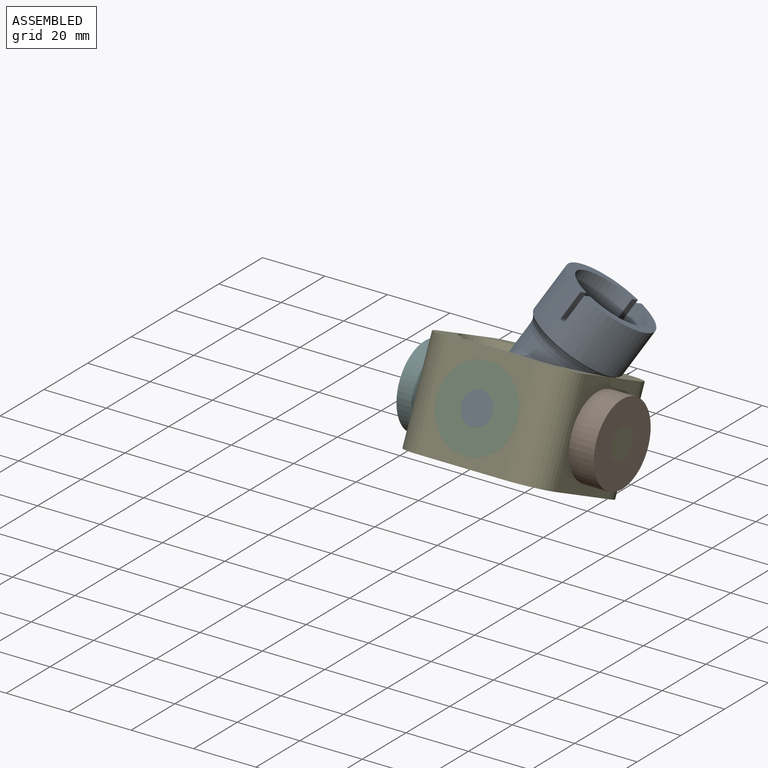
[diagram: assembled view]
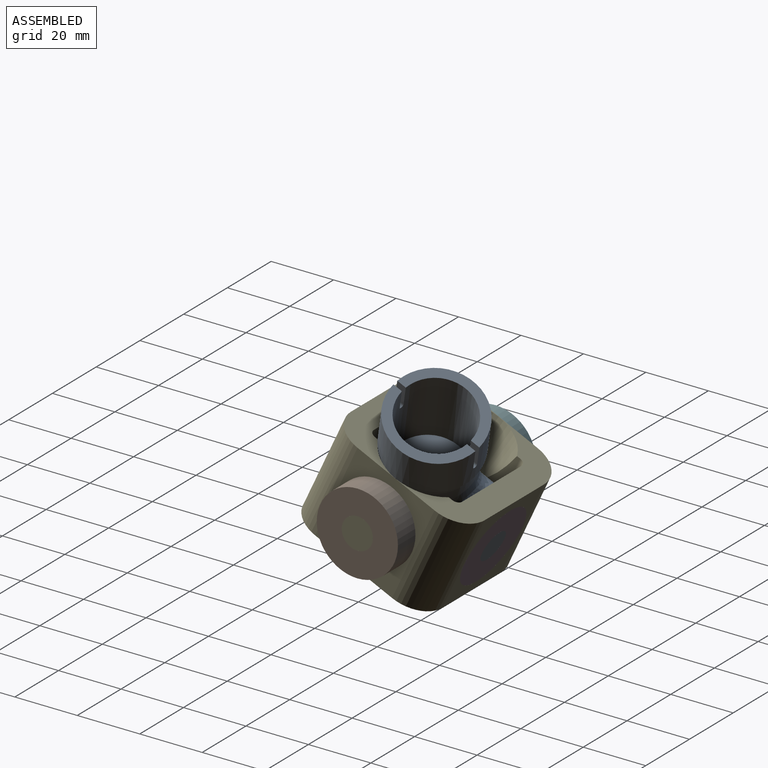
[diagram: assembled view, second angle]
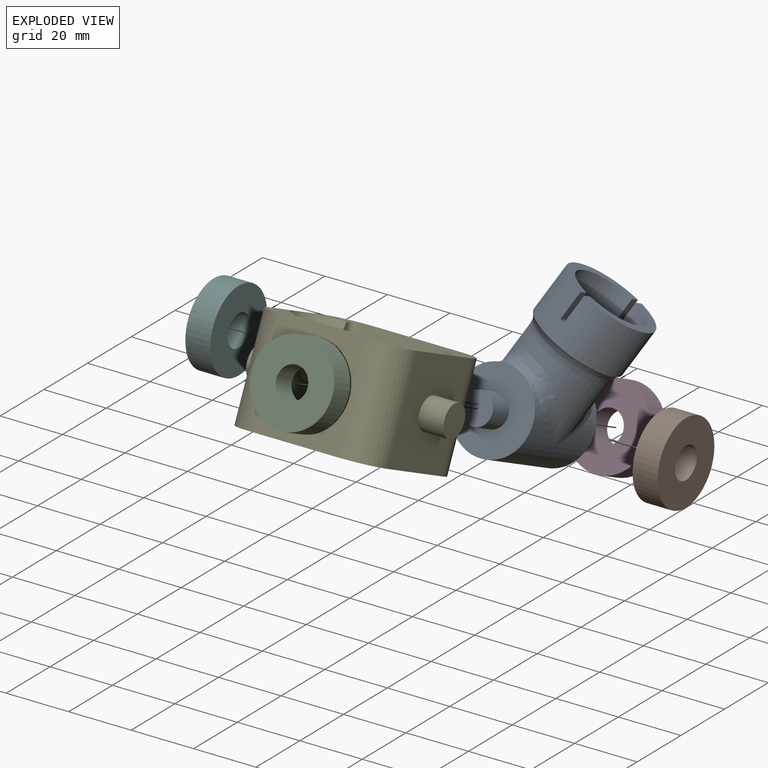
[diagram: exploded view]
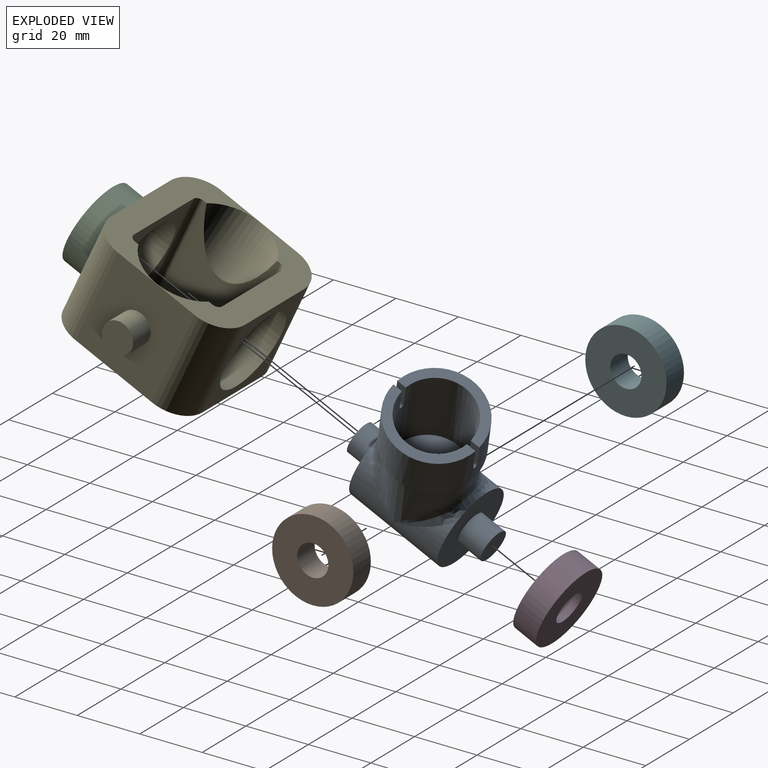
[diagram: exploded view, second angle]
ASSEMBLY  parts=6 mates=5
PART A: 26 faces, bbox 39.3x47.5x53.3 mm
  f0: cylinder r=14.53mm len=29.05mm, axis (0,0,-1), area 1340.5mm2, adj f1,f11,f12,f14,f15,f16,f17,f18
  f1: plane 29.01x13.77mm, normal (0,0,1), area 118.2mm2, adj f0,f2,f14,f18
  f2: cylinder r=11.53mm len=30mm, axis (0,0,1), area 2144mm2, adj f1,f11,f13,f14,f15,f16,f17,f18
  f3: cylinder r=13mm len=26mm, axis (0,0,-1), area 821.2mm2, adj f12,f20,f21,f22,f23,f24,f25
  f4: cylinder r=13mm len=31.2mm, axis (0,1,0), area 1655.7mm2, adj f5,f6,f20,f22,f23,f25
  f5: plane 26.29x26.29mm, normal (0,-1,0), area 452.4mm2, adj f4,f9,f24
  f6: plane 26.29x26.29mm, normal (0,1,0), area 452.4mm2, adj f4,f8,f21
  f7: plane 10x10mm, normal (0,1,0), area 78.5mm2, adj f8
  f8: cylinder r=5mm len=10mm, axis (0,1,0), area 251.3mm2, adj f6,f7
  f9: cylinder r=5mm len=10mm, axis (0,1,0), area 251.3mm2, adj f5,f10
  f10: plane 10x10mm, normal (0,-1,0), area 78.5mm2, adj f9
  f11: plane 29.01x13.77mm, normal (0,0,1), area 118.2mm2, adj f0,f2,f15,f19
  f12: torus R=18mm, axis (0,0,1), area 340.9mm2, adj f0,f3
  f13: plane 23.05x23.05mm, normal (0,0,1), area 417.3mm2, adj f2
  f14: plane 8.79x3.01mm, normal (-1,0,0), area 26.4mm2, adj f0,f1,f2,f16
  f15: plane 8.79x3.01mm, normal (1,0,0), area 26.4mm2, adj f0,f2,f11,f16
  f16: cylinder r=0.76mm len=3.01mm, axis (0,-1,0), area 7.2mm2, adj f0,f2,f14,f15
  f17: cylinder r=0.76mm len=3.01mm, axis (0,-1,0), area 7.2mm2, adj f0,f2,f18,f19
  f18: plane 8.79x3.01mm, normal (-1,0,0), area 26.4mm2, adj f0,f1,f2,f17
  f19: plane 8.79x3.01mm, normal (1,0,0), area 26.4mm2, adj f0,f2,f11,f17
  f20: bspline ~16.15x16.15mm, area 67mm2, adj f3,f4,f21
  f21: bspline ~14.25x6.62mm, area 74.7mm2, adj f3,f6,f20,f22
  f22: bspline ~16.15x16.15mm, area 67mm2, adj f3,f4,f21
  f23: bspline ~16.15x16.15mm, area 67mm2, adj f3,f4,f24
  f24: bspline ~14.25x6.62mm, area 74.7mm2, adj f3,f5,f23,f25
  f25: bspline ~16.15x16.15mm, area 67mm2, adj f3,f4,f24
PART B: 4 faces, bbox 26x26x8 mm
  f0: cylinder r=5mm len=10mm, axis (0,0,-1), area 251.3mm2, adj f2,f3
  f1: cylinder r=13mm len=26mm, axis (0,0,-1), area 653.5mm2, adj f2,f3
  f2: plane 26x26mm, normal (0,0,1), area 452.4mm2, adj f0,f1
  f3: plane 26x26mm, normal (0,0,-1), area 452.4mm2, adj f0,f1
PART C: same geometry as B
PART D: same geometry as B
PART E: 26 faces, bbox 63.2x47.2x35 mm
  f0: plane 47.2x47.2mm, normal (0,0,1), area 894mm2, adj f2,f3,f4,f5,f6,f7,f8,f9
  f1: plane 47.2x47.2mm, normal (0,0,-1), area 1172mm2, adj f2,f3,f4,f5,f6,f7,f8,f9
  f2: plane 32x27.2mm, normal (-1,0,0), area 791.9mm2, adj f0,f1,f6,f9,f22
  f3: plane 32x27.2mm, normal (0,-1,0), area 339.5mm2, adj f0,f1,f6,f7,f19
  f4: plane 32x27.2mm, normal (1,0,0), area 791.9mm2, adj f0,f1,f7,f8,f24
  f5: plane 32x27.2mm, normal (0,1,0), area 339.5mm2, adj f0,f1,f8,f9,f18
  f6: cylinder r=10mm len=32mm, axis (0,0,1), area 502.7mm2, adj f0,f1,f2,f3
  f7: cylinder r=10mm len=32mm, axis (0,0,-1), area 502.7mm2, adj f0,f1,f3,f4
  f8: cylinder r=10mm len=32mm, axis (0,0,1), area 502.7mm2, adj f0,f1,f4,f5
  f9: cylinder r=10mm len=32mm, axis (0,0,-1), area 502.7mm2, adj f0,f1,f2,f5
  f10: plane 32x27.2mm, normal (1,0,0), area 572.3mm2, adj f0,f1,f14,f17,f20
  f11: plane 32x27.2mm, normal (0,1,0), area 339.5mm2, adj f0,f1,f14,f15,f19
  f12: plane 32x27.2mm, normal (-1,0,0), area 572.3mm2, adj f0,f1,f15,f16,f21
  f13: plane 32x27.2mm, normal (0,-1,0), area 339.5mm2, adj f0,f1,f16,f17,f18
  f14: cylinder r=2mm len=32mm, axis (0,0,1), area 100.5mm2, adj f0,f1,f10,f11
  f15: cylinder r=2mm len=32mm, axis (0,0,-1), area 100.5mm2, adj f0,f1,f11,f12
  f16: cylinder r=2mm len=32mm, axis (0,0,1), area 100.5mm2, adj f0,f1,f12,f13
  f17: cylinder r=2mm len=32mm, axis (0,0,-1), area 100.5mm2, adj f0,f1,f10,f13
  f18: cylinder r=13mm len=26mm, axis (0,-1,0), area 653.5mm2, adj f5,f13
  f19: cylinder r=13mm len=26mm, axis (0,-1,0), area 653.5mm2, adj f3,f11
  f20: cylinder r=14.5mm len=24.97mm, axis (0.42,0,-0.91), area 365.9mm2, adj f0,f10
  f21: cylinder r=14.5mm len=24.97mm, axis (-0.42,0,-0.91), area 365.9mm2, adj f0,f12
  f22: cylinder r=5mm len=10mm, axis (1,0,0), area 251.3mm2, adj f2,f23
  f23: plane 10x10mm, normal (-1,0,0), area 78.5mm2, adj f22
  f24: cylinder r=5mm len=10mm, axis (-1,0,0), area 251.3mm2, adj f4,f25
  f25: plane 10x10mm, normal (1,0,0), area 78.5mm2, adj f24
PART F: same geometry as B
PLACE A rot(axis=(-0.69,0.71,-0.16),35.7deg) t=(0.29,2.99,7.91)mm
PLACE B rot(axis=(-0.58,-0.58,0.58),120deg) t=(22.48,-1.79,-2.29)mm fixed
PLACE C rot(axis=(-1,0,0),115.1deg) t=(-5.12,-19.54,6.02)mm
PLACE D rot(axis=(-1,0,0),115.1deg) t=(-5.12,15.96,-10.61)mm
PLACE E rot(axis=(-1,0,0),25.1deg) t=(-5.12,-1.79,-2.29)mm
PLACE F rot(axis=(-0.58,0.58,-0.58),120deg) t=(-32.72,-1.79,-2.29)mm
MATE revolute C.f0 <-> A.f4  axis (0,-0.91,0.42) through (-5.12,-19.54,6.02)mm
MATE revolute D.f0 <-> A.f4  axis (0,-0.91,0.42) through (-5.12,15.96,-10.61)mm
MATE revolute F.f0 <-> E.f22  axis (-1,0,0) through (-32.72,-1.79,-2.29)mm
MATE revolute E.f18 <-> A.f4  axis (0,-0.91,0.42) through (-5.12,-19.54,6.02)mm
MATE revolute B.f0 <-> E.f24  axis (1,0,0) through (22.48,-1.79,-2.29)mm
